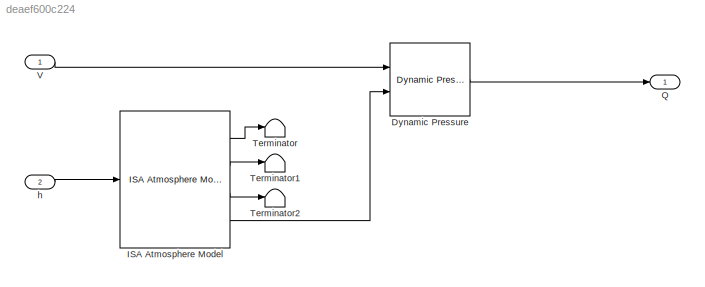
MODEL slx_deaef600c224
KIND model
CONFIG AbsTol = auto
CONFIG EnableMultiTasking = off
CONFIG FixedStep = auto
CONFIG MaxStep = auto
CONFIG MinStep = auto
CONFIG RelTol = 1e-3
CONFIG SampleTimeConstraint = Unconstrained
CONFIG Solver = VariableStepAuto
CONFIG SolverName = VariableStepAuto
CONFIG StartTime = 0.0
CONFIG StopTime = 10.0
BLOCK [Reference] Dynamic Pressure  REF=aerolibasang/Dynamic Pressure
  Ports = [2, 1]
  SourceBlock = aerolibasang/Dynamic Pressure
  SourceProductBaseCode = AE
  SourceProductName = Aerospace Blockset
  SourceType = Dynamic Pressure
BLOCK [Reference] ISA Atmosphere Model  REF=aerolibatmos2/ISA Atmosphere Model
  Ports = [1, 4]
  SourceBlock = aerolibatmos2/ISA Atmosphere Model
  SourceProductBaseCode = AE
  SourceProductName = Aerospace Blockset
  SourceType = International Standard Atmosphere Model
BLOCK [Outport] Q
  IconDisplay = Port number
BLOCK [Terminator] Terminator
BLOCK [Terminator] Terminator1
BLOCK [Terminator] Terminator2
BLOCK [Inport] V
  IconDisplay = Port number
BLOCK [Inport] h
  IconDisplay = Port number
  Port = 2
LINE Dynamic Pressure:1 -> Q:1
LINE ISA Atmosphere Model:1 -> Terminator:1
LINE ISA Atmosphere Model:2 -> Terminator1:1
LINE ISA Atmosphere Model:3 -> Terminator2:1
LINE ISA Atmosphere Model:4 -> Dynamic Pressure:2
LINE V:1 -> Dynamic Pressure:1
LINE h:1 -> ISA Atmosphere Model:1
